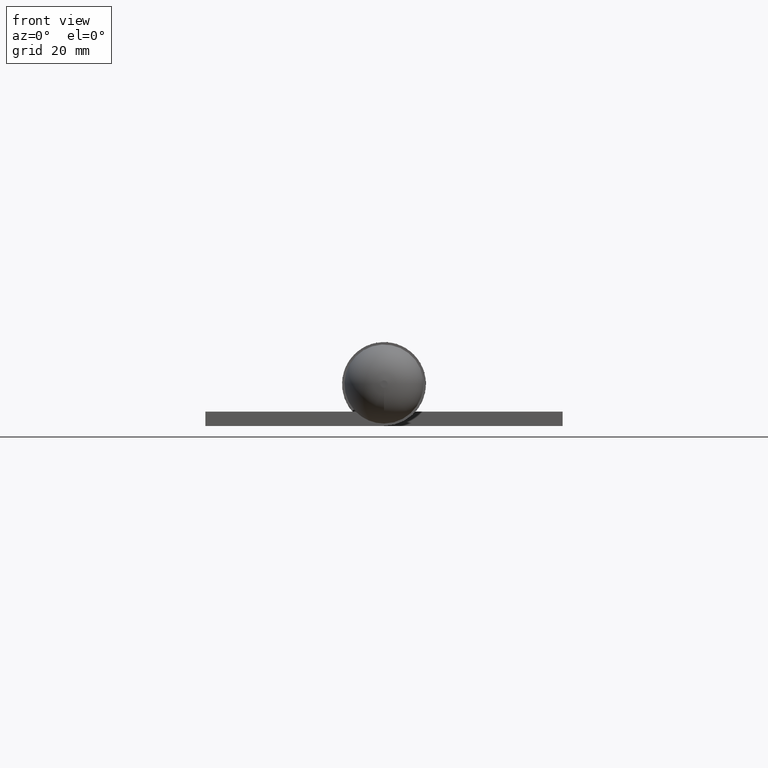
[diagram: clean part render]
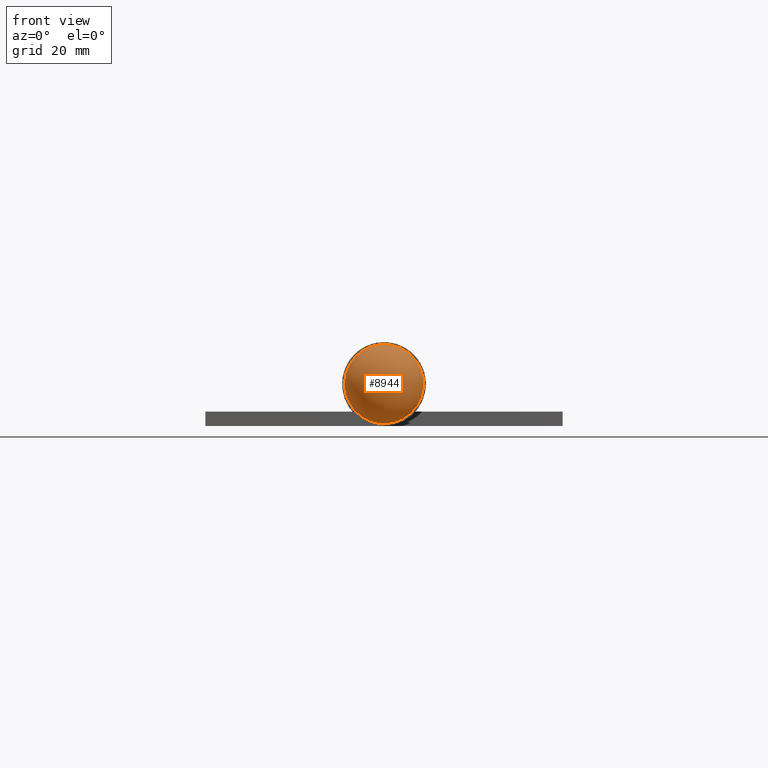
[diagram: same view with one face highlighted and labeled with its STEP entity id]
A machine part, front view. The second image highlights one B-rep face of the part: STEP entity #8944.
In plain terms, the highlighted toroidal blend (fillet) surface has major radius 0.75 mm and minor (blend) radius 7.5 mm.
Its self-contained STEP definition (entity closure, byte-faithful):
#668 = DIRECTION ( 'NONE',  ( 0.000000000000000000, 0.000000000000000000, -1.000000000000000000 ) ) ;
#827 = CARTESIAN_POINT ( 'NONE',  ( 0.000000000000000000, 36.00000000000000711, 0.000000000000000000 ) ) ;
#846 = AXIS2_PLACEMENT_3D ( 'NONE', #3731, #2730, #910 ) ;
#910 = DIRECTION ( 'NONE',  ( 0.000000000000000000, 0.000000000000000000, -1.000000000000000000 ) ) ;
#1350 = DIRECTION ( 'NONE',  ( 0.000000000000000000, 0.000000000000000000, -1.000000000000000000 ) ) ;
#1569 = AXIS2_PLACEMENT_3D ( 'NONE', #2240, #5788, #1350 ) ;
#1626 = AXIS2_PLACEMENT_3D ( 'NONE', #10348, #11285, #8747 ) ;
#1724 = AXIS2_PLACEMENT_3D ( 'NONE', #827, #6149, #668 ) ;
#1766 = VERTEX_POINT ( 'NONE', #7109 ) ;
#2171 = EDGE_CURVE ( 'NONE', #11973, #1766, #10462, .T. ) ;
#2211 = ORIENTED_EDGE ( 'NONE', *, *, #10667, .F. ) ;
#2240 = CARTESIAN_POINT ( 'NONE',  ( 0.000000000000000000, 28.50000000000000355, 0.000000000000000000 ) ) ;
#2730 = DIRECTION ( 'NONE',  ( 0.000000000000000000, -1.000000000000000000, 0.000000000000000000 ) ) ;
#2802 = FACE_OUTER_BOUND ( 'NONE', #9898, .T. ) ;
#2825 = EDGE_CURVE ( 'NONE', #1766, #11973, #4519, .T. ) ;
#3731 = CARTESIAN_POINT ( 'NONE',  ( 0.000000000000000000, 28.50000000000000000, 0.000000000000000000 ) ) ;
#4519 = CIRCLE ( 'NONE', #1626, 8.250000000000000000 ) ;
#5788 = DIRECTION ( 'NONE',  ( 0.000000000000000000, -1.000000000000000000, 0.000000000000000000 ) ) ;
#6046 = CIRCLE ( 'NONE', #1724, 0.7500000000000006661 ) ;
#6149 = DIRECTION ( 'NONE',  ( -0.000000000000000000, 1.000000000000000000, -0.000000000000000000 ) ) ;
#7063 = EDGE_LOOP ( 'NONE', ( #2211 ) ) ;
#7109 = CARTESIAN_POINT ( 'NONE',  ( 5.916079783099616130, 28.50000000000000000, -5.750000000000000888 ) ) ;
#7329 = ORIENTED_EDGE ( 'NONE', *, *, #2825, .F. ) ;
#7400 = TOROIDAL_SURFACE ( 'NONE', #1569, 0.7500000000000006661, 7.500000000000000000 ) ;
#7525 = FACE_OUTER_BOUND ( 'NONE', #7063, .T. ) ;
#8637 = VERTEX_POINT ( 'NONE', #10093 ) ;
#8747 = DIRECTION ( 'NONE',  ( 0.000000000000000000, 0.000000000000000000, -1.000000000000000000 ) ) ;
#8944 = ADVANCED_FACE ( 'NONE', ( #7525, #2802 ), #7400, .T. ) ;
#9898 = EDGE_LOOP ( 'NONE', ( #11542, #7329 ) ) ;
#10093 = CARTESIAN_POINT ( 'NONE',  ( 0.000000000000000000, 36.00000000000000711, -0.7500000000000006661 ) ) ;
#10348 = CARTESIAN_POINT ( 'NONE',  ( 0.000000000000000000, 28.50000000000000000, 0.000000000000000000 ) ) ;
#10462 = CIRCLE ( 'NONE', #846, 8.250000000000000000 ) ;
#10667 = EDGE_CURVE ( 'NONE', #8637, #8637, #6046, .T. ) ;
#11285 = DIRECTION ( 'NONE',  ( 0.000000000000000000, -1.000000000000000000, 0.000000000000000000 ) ) ;
#11542 = ORIENTED_EDGE ( 'NONE', *, *, #2171, .F. ) ;
#11696 = CARTESIAN_POINT ( 'NONE',  ( 6.299527679087681520, 28.50000000000000000, -5.327142857142857402 ) ) ;
#11973 = VERTEX_POINT ( 'NONE', #11696 ) ;